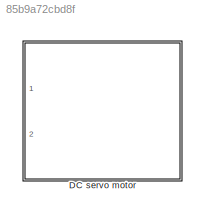
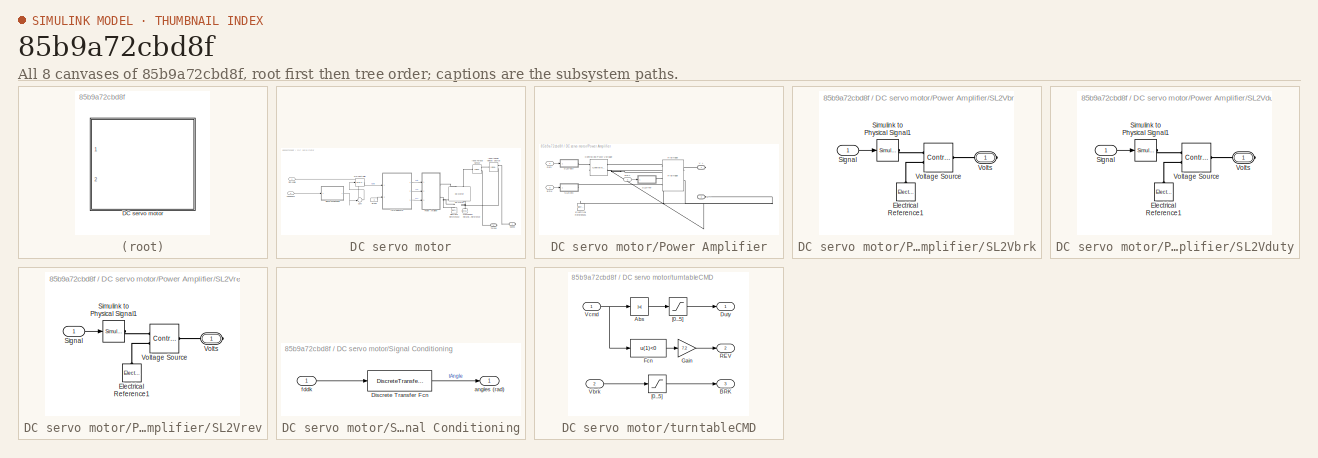
[diagram: thumbnail index - all 8 canvases of the model, root first then tree order]
MODEL slx_85b9a72cbd8f
KIND model
CONFIG AbsTol = auto
CONFIG EnableMultiTasking = off
CONFIG FixedStep = auto
CONFIG MaxStep = auto
CONFIG MinStep = auto
CONFIG RelTol = 1e-3
CONFIG SampleTimeConstraint = Unconstrained
CONFIG Solver = VariableStepAuto
CONFIG SolverName = VariableStepAuto
CONFIG StartTime = 0.0
CONFIG StopTime = 10.0
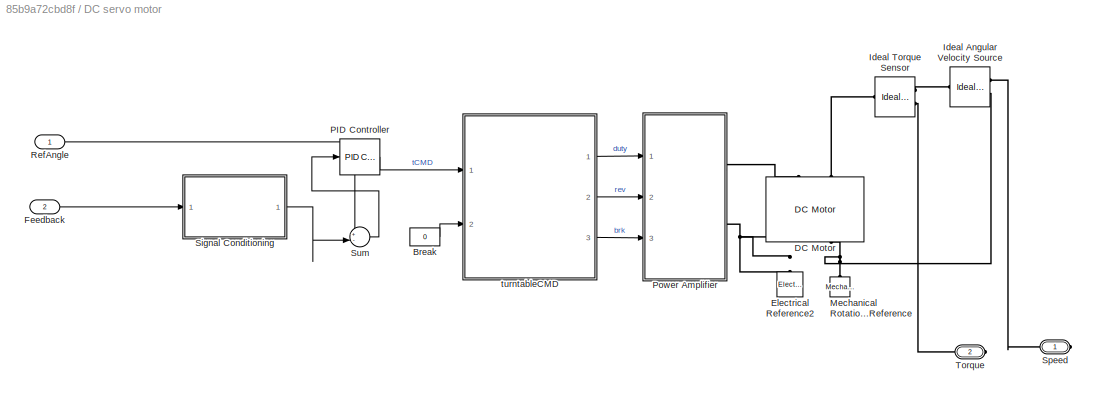
BLOCK [SubSystem] DC servo motor
  Ports = [2, 0, 0, 0, 0, 0, 2]
  RequestExecContextInheritance = off
BLOCK [Constant] DC servo motor/Break
  Value = 0
BLOCK [Reference] DC servo motor/DC Motor  REF=elec_lib/Actuators & Drivers/Rotational Actuators/DC Motor
  Ports = [0, 0, 0, 0, 0, 2, 2]
  SourceBlock = elec_lib/Actuators & Drivers/Rotational Actuators/DC Motor
  SourceProductBaseCode = SN
  SourceProductName = Simscape Electronics
  SourceType = DC Motor
BLOCK [Reference] DC servo motor/Electrical Reference2  REF=fl_lib/Electrical/Electrical Elements/Electrical Reference
  Ports = [0, 0, 0, 0, 0, 1]
  SourceBlock = fl_lib/Electrical/Electrical Elements/Electrical Reference
  SourceProductBaseCode = SS
  SourceProductName = Simscape
  SourceType = Electrical Reference
BLOCK [Inport] DC servo motor/Feedback
  IconDisplay = Port number
  Port = 2
BLOCK [Reference] DC servo motor/Ideal Angular Velocity Source  REF=fl_lib/Mechanical/Mechanical Sources/Ideal Angular
Velocity Source
  Ports = [0, 0, 0, 0, 0, 1, 2]
  SourceBlock = fl_lib/Mechanical/Mechanical Sources/Ideal Angular\nVelocity Source
  SourceProductBaseCode = SS
  SourceProductName = Simscape
  SourceType = Ideal Angular\nVelocity Source
BLOCK [Reference] DC servo motor/Ideal Torque Sensor  REF=fl_lib/Mechanical/Mechanical Sensors/Ideal Torque Sensor
  Ports = [0, 0, 0, 0, 0, 1, 2]
  SourceBlock = fl_lib/Mechanical/Mechanical Sensors/Ideal Torque Sensor
  SourceProductBaseCode = SS
  SourceProductName = Simscape
  SourceType = Ideal Torque Sensor
BLOCK [Reference] DC servo motor/Mechanical Rotational Reference  REF=fl_lib/Mechanical/Rotational Elements/Mechanical
Rotational Reference
  Ports = [0, 0, 0, 0, 0, 1]
  SourceBlock = fl_lib/Mechanical/Rotational Elements/Mechanical\nRotational Reference
  SourceProductBaseCode = SS
  SourceProductName = Simscape
  SourceType = Mechanical\nRotational Reference
BLOCK [Reference] DC servo motor/PID Controller  REF=simulink/Continuous/PID Controller
  Ports = [1, 1]
  SourceBlock = simulink/Continuous/PID Controller
  SourceProductBaseCode = SL
  SourceProductName = Simulink
  SourceType = PID 1dof
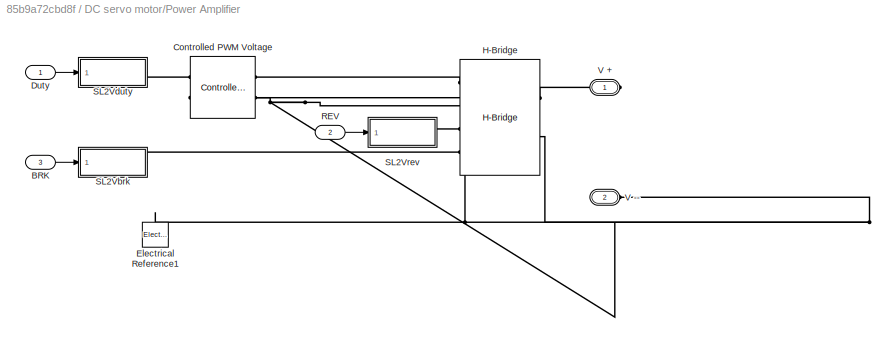
BLOCK [SubSystem] DC servo motor/Power Amplifier
  Ports = [3, 0, 0, 0, 0, 0, 2]
  RequestExecContextInheritance = off
BLOCK [Inport] DC servo motor/Power Amplifier/BRK
  IconDisplay = Port number
  Port = 3
BLOCK [Reference] DC servo motor/Power Amplifier/Controlled PWM Voltage  REF=elec_lib/Actuators & Drivers/Drivers/Controlled PWM
Voltage
  Ports = [0, 0, 0, 0, 0, 2, 2]
  SourceBlock = elec_lib/Actuators & Drivers/Drivers/Controlled PWM\nVoltage
  SourceProductBaseCode = SN
  SourceProductName = Simscape Electronics
  SourceType = Controlled PWM\nVoltage
BLOCK [Inport] DC servo motor/Power Amplifier/Duty
  IconDisplay = Port number
BLOCK [Reference] DC servo motor/Power Amplifier/Electrical Reference1  REF=fl_lib/Electrical/Electrical Elements/Electrical Reference
  Ports = [0, 0, 0, 0, 0, 1]
  SourceBlock = fl_lib/Electrical/Electrical Elements/Electrical Reference
  SourceProductBaseCode = SS
  SourceProductName = Simscape
  SourceType = Electrical Reference
BLOCK [Reference] DC servo motor/Power Amplifier/H-Bridge  REF=elec_lib/Actuators & Drivers/Drivers/H-Bridge
  Ports = [0, 0, 0, 0, 0, 4, 2]
  SourceBlock = elec_lib/Actuators & Drivers/Drivers/H-Bridge
  SourceProductBaseCode = SN
  SourceProductName = Simscape Electronics
  SourceType = H-Bridge
BLOCK [Inport] DC servo motor/Power Amplifier/REV
  IconDisplay = Port number
  Port = 2
BLOCK [SubSystem] DC servo motor/Power Amplifier/SL2Vbrk
  Ports = [1, 0, 0, 0, 0, 0, 1]
  RequestExecContextInheritance = off
BLOCK [Reference] DC servo motor/Power Amplifier/SL2Vbrk/Electrical Reference1  REF=fl_lib/Electrical/Electrical Elements/Electrical Reference
  Ports = [0, 0, 0, 0, 0, 1]
  SourceBlock = fl_lib/Electrical/Electrical Elements/Electrical Reference
  SourceProductBaseCode = SS
  SourceProductName = Simscape
  SourceType = Electrical Reference
BLOCK [Inport] DC servo motor/Power Amplifier/SL2Vbrk/Signal
  IconDisplay = Port number
BLOCK [Reference] DC servo motor/Power Amplifier/SL2Vbrk/Simulink to Physical Signal1  REF=nesl_utility/Simulink-PS
Converter
  Ports = [1, 0, 0, 0, 0, 0, 1]
  SourceBlock = nesl_utility/Simulink-PS\nConverter
  SourceProductBaseCode = SS
  SourceProductName = Simscape
  SourceType = Simulink-PS\nConverter
BLOCK [Reference] DC servo motor/Power Amplifier/SL2Vbrk/Voltage Source  REF=fl_lib/Electrical/Electrical Sources/Controlled Voltage
Source
  Ports = [0, 0, 0, 0, 0, 1, 2]
  SourceBlock = fl_lib/Electrical/Electrical Sources/Controlled Voltage\nSource
  SourceProductBaseCode = SS
  SourceProductName = Simscape
  SourceType = Controlled Voltage\nSource
BLOCK [PMIOPort] DC servo motor/Power Amplifier/SL2Vbrk/Volts
  Side = Right
  Tag = PMCPort
BLOCK [SubSystem] DC servo motor/Power Amplifier/SL2Vduty
  Ports = [1, 0, 0, 0, 0, 0, 1]
  RequestExecContextInheritance = off
BLOCK [Reference] DC servo motor/Power Amplifier/SL2Vduty/Electrical Reference1  REF=fl_lib/Electrical/Electrical Elements/Electrical Reference
  Ports = [0, 0, 0, 0, 0, 1]
  SourceBlock = fl_lib/Electrical/Electrical Elements/Electrical Reference
  SourceProductBaseCode = SS
  SourceProductName = Simscape
  SourceType = Electrical Reference
BLOCK [Inport] DC servo motor/Power Amplifier/SL2Vduty/Signal
  IconDisplay = Port number
BLOCK [Reference] DC servo motor/Power Amplifier/SL2Vduty/Simulink to Physical Signal1  REF=nesl_utility/Simulink-PS
Converter
  Ports = [1, 0, 0, 0, 0, 0, 1]
  SourceBlock = nesl_utility/Simulink-PS\nConverter
  SourceProductBaseCode = SS
  SourceProductName = Simscape
  SourceType = Simulink-PS\nConverter
BLOCK [Reference] DC servo motor/Power Amplifier/SL2Vduty/Voltage Source  REF=fl_lib/Electrical/Electrical Sources/Controlled Voltage
Source
  Ports = [0, 0, 0, 0, 0, 1, 2]
  SourceBlock = fl_lib/Electrical/Electrical Sources/Controlled Voltage\nSource
  SourceProductBaseCode = SS
  SourceProductName = Simscape
  SourceType = Controlled Voltage\nSource
BLOCK [PMIOPort] DC servo motor/Power Amplifier/SL2Vduty/Volts
  Side = Right
  Tag = PMCPort
BLOCK [SubSystem] DC servo motor/Power Amplifier/SL2Vrev
  Ports = [1, 0, 0, 0, 0, 0, 1]
  RequestExecContextInheritance = off
BLOCK [Reference] DC servo motor/Power Amplifier/SL2Vrev/Electrical Reference1  REF=fl_lib/Electrical/Electrical Elements/Electrical Reference
  Ports = [0, 0, 0, 0, 0, 1]
  SourceBlock = fl_lib/Electrical/Electrical Elements/Electrical Reference
  SourceProductBaseCode = SS
  SourceProductName = Simscape
  SourceType = Electrical Reference
BLOCK [Inport] DC servo motor/Power Amplifier/SL2Vrev/Signal
  IconDisplay = Port number
BLOCK [Reference] DC servo motor/Power Amplifier/SL2Vrev/Simulink to Physical Signal1  REF=nesl_utility/Simulink-PS
Converter
  Ports = [1, 0, 0, 0, 0, 0, 1]
  SourceBlock = nesl_utility/Simulink-PS\nConverter
  SourceProductBaseCode = SS
  SourceProductName = Simscape
  SourceType = Simulink-PS\nConverter
BLOCK [Reference] DC servo motor/Power Amplifier/SL2Vrev/Voltage Source  REF=fl_lib/Electrical/Electrical Sources/Controlled Voltage
Source
  Ports = [0, 0, 0, 0, 0, 1, 2]
  SourceBlock = fl_lib/Electrical/Electrical Sources/Controlled Voltage\nSource
  SourceProductBaseCode = SS
  SourceProductName = Simscape
  SourceType = Controlled Voltage\nSource
BLOCK [PMIOPort] DC servo motor/Power Amplifier/SL2Vrev/Volts
  Side = Right
  Tag = PMCPort
BLOCK [PMIOPort] DC servo motor/Power Amplifier/V +
  Side = Right
  Tag = PMCPort
BLOCK [PMIOPort] DC servo motor/Power Amplifier/V --
  Port = 2
  Side = Right
  Tag = PMCPort
BLOCK [Inport] DC servo motor/RefAngle
  IconDisplay = Port number
BLOCK [SubSystem] DC servo motor/Signal Conditioning
  Ports = [1, 1]
  RequestExecContextInheritance = off
BLOCK [DiscreteTransferFcn] DC servo motor/Signal Conditioning/Discrete Transfer Fcn
  Denominator = [100 1]
  InputPortMap = u0
  Numerator = 100
  Ports = [1, 1]
BLOCK [Outport] DC servo motor/Signal Conditioning/angles (rad)
  IconDisplay = Port number
BLOCK [Inport] DC servo motor/Signal Conditioning/fddk
  IconDisplay = Port number
BLOCK [PMIOPort] DC servo motor/Speed
  Side = Right
BLOCK [Sum] DC servo motor/Sum
  IconShape = round
  InputSameDT = off
  Inputs = +-
  OutDataTypeStr = Inherit: Inherit via internal rule
  Ports = [2, 1]
  SaturateOnIntegerOverflow = off
BLOCK [PMIOPort] DC servo motor/Torque
  Port = 2
  Side = Right
BLOCK [SubSystem] DC servo motor/turntableCMD
  Ports = [2, 3]
  RequestExecContextInheritance = off
BLOCK [Abs] DC servo motor/turntableCMD/Abs
  SaturateOnIntegerOverflow = off
BLOCK [Outport] DC servo motor/turntableCMD/BRK
  IconDisplay = Port number
  Port = 3
BLOCK [Outport] DC servo motor/turntableCMD/Duty
  IconDisplay = Port number
BLOCK [Fcn] DC servo motor/turntableCMD/Fcn
  Expr = u(1)<0
BLOCK [Gain] DC servo motor/turntableCMD/Gain
  Gain = 7.2
  OutDataTypeStr = Inherit: Inherit via internal rule
  ParamDataTypeStr = Inherit: Inherit via internal rule
  SaturateOnIntegerOverflow = off
BLOCK [Outport] DC servo motor/turntableCMD/REV
  IconDisplay = Port number
  Port = 2
BLOCK [Inport] DC servo motor/turntableCMD/Vbrk
  IconDisplay = Port number
  Port = 2
BLOCK [Inport] DC servo motor/turntableCMD/Vcmd
  IconDisplay = Port number
BLOCK [Saturate] DC servo motor/turntableCMD/[0...5]
  InputPortMap = u0
  LowerLimit = 0
  Ports = [1, 1]
  UpperLimit = 7.2
BLOCK [Saturate] DC servo motor/turntableCMD/[0...5] 
  InputPortMap = u0
  LowerLimit = 0
  Ports = [1, 1]
  UpperLimit = 7.2
LINE DC servo motor/Break:1 -> DC servo motor/turntableCMD:2
LINE DC servo motor/Feedback:1 -> DC servo motor/Signal Conditioning:1
LINE DC servo motor/PID Controller:1 -> DC servo motor/turntableCMD:1
LINE DC servo motor/Power Amplifier/BRK:1 -> DC servo motor/Power Amplifier/SL2Vbrk:1
LINE DC servo motor/Power Amplifier/Duty:1 -> DC servo motor/Power Amplifier/SL2Vduty:1
LINE DC servo motor/Power Amplifier/REV:1 -> DC servo motor/Power Amplifier/SL2Vrev:1
LINE DC servo motor/Power Amplifier/SL2Vbrk/Signal:1 -> DC servo motor/Power Amplifier/SL2Vbrk/Simulink to Physical Signal1:1
LINE DC servo motor/Power Amplifier/SL2Vduty/Signal:1 -> DC servo motor/Power Amplifier/SL2Vduty/Simulink to Physical Signal1:1
LINE DC servo motor/Power Amplifier/SL2Vrev/Signal:1 -> DC servo motor/Power Amplifier/SL2Vrev/Simulink to Physical Signal1:1
LINE DC servo motor/RefAngle:1 -> DC servo motor/Sum:1
LINE DC servo motor/Signal Conditioning/Discrete Transfer Fcn:1 -> DC servo motor/Signal Conditioning/angles (rad):1
LINE DC servo motor/Signal Conditioning/fddk:1 -> DC servo motor/Signal Conditioning/Discrete Transfer Fcn:1
LINE DC servo motor/Signal Conditioning:1 -> DC servo motor/Sum:2
LINE DC servo motor/Sum:1 -> DC servo motor/PID Controller:1
LINE DC servo motor/turntableCMD/Abs:1 -> DC servo motor/turntableCMD/[0...5]:1
LINE DC servo motor/turntableCMD/Fcn:1 -> DC servo motor/turntableCMD/Gain:1
LINE DC servo motor/turntableCMD/Gain:1 -> DC servo motor/turntableCMD/REV:1
LINE DC servo motor/turntableCMD/Vbrk:1 -> DC servo motor/turntableCMD/[0...5] :1
NET DC servo motor/turntableCMD/Vcmd:1 -> DC servo motor/turntableCMD/Abs:1, DC servo motor/turntableCMD/Fcn:1
LINE DC servo motor/turntableCMD/[0...5] :1 -> DC servo motor/turntableCMD/BRK:1
LINE DC servo motor/turntableCMD/[0...5]:1 -> DC servo motor/turntableCMD/Duty:1
LINE DC servo motor/turntableCMD:1 -> DC servo motor/Power Amplifier:1
LINE DC servo motor/turntableCMD:2 -> DC servo motor/Power Amplifier:2
LINE DC servo motor/turntableCMD:3 -> DC servo motor/Power Amplifier:3
PLINE DC servo motor/DC Motor:LConn1 -- DC servo motor/Power Amplifier:RConn1
PLINE DC servo motor/DC Motor:LConn2 -- DC servo motor/Ideal Torque Sensor:LConn1
PNET net1: DC servo motor/DC Motor:RConn1 -- DC servo motor/Electrical Reference2:LConn1 -- DC servo motor/Power Amplifier:RConn2
PNET net2: DC servo motor/DC Motor:RConn2 -- DC servo motor/Ideal Angular Velocity Source:RConn2 -- DC servo motor/Mechanical Rotational Reference:LConn1
PLINE DC servo motor/Ideal Angular Velocity Source:LConn1 -- DC servo motor/Ideal Torque Sensor:RConn1
PLINE DC servo motor/Ideal Angular Velocity Source:RConn1 -- DC servo motor/Speed:RConn1
PLINE DC servo motor/Ideal Torque Sensor:RConn2 -- DC servo motor/Torque:RConn1
PLINE DC servo motor/Power Amplifier/Controlled PWM Voltage:LConn1 -- DC servo motor/Power Amplifier/SL2Vduty:RConn1
PNET net3: DC servo motor/Power Amplifier/Controlled PWM Voltage:LConn2 -- DC servo motor/Power Amplifier/Controlled PWM Voltage:RConn2 -- DC servo motor/Power Amplifier/Electrical Reference1:LConn1 -- DC servo motor/Power Amplifier/H-Bridge:LConn2 -- DC servo motor/Power Amplifier/H-Bridge:RConn2 -- DC servo motor/Power Amplifier/V --:RConn1
PLINE DC servo motor/Power Amplifier/Controlled PWM Voltage:RConn1 -- DC servo motor/Power Amplifier/H-Bridge:LConn1
PLINE DC servo motor/Power Amplifier/H-Bridge:LConn3 -- DC servo motor/Power Amplifier/SL2Vrev:RConn1
PLINE DC servo motor/Power Amplifier/H-Bridge:LConn4 -- DC servo motor/Power Amplifier/SL2Vbrk:RConn1
PLINE DC servo motor/Power Amplifier/H-Bridge:RConn1 -- DC servo motor/Power Amplifier/V +:RConn1
PLINE DC servo motor/Power Amplifier/SL2Vbrk/Electrical Reference1:LConn1 -- DC servo motor/Power Amplifier/SL2Vbrk/Voltage Source:RConn2
PLINE DC servo motor/Power Amplifier/SL2Vbrk/Simulink to Physical Signal1:RConn1 -- DC servo motor/Power Amplifier/SL2Vbrk/Voltage Source:RConn1
PLINE DC servo motor/Power Amplifier/SL2Vbrk/Voltage Source:LConn1 -- DC servo motor/Power Amplifier/SL2Vbrk/Volts:RConn1
PLINE DC servo motor/Power Amplifier/SL2Vduty/Electrical Reference1:LConn1 -- DC servo motor/Power Amplifier/SL2Vduty/Voltage Source:RConn2
PLINE DC servo motor/Power Amplifier/SL2Vduty/Simulink to Physical Signal1:RConn1 -- DC servo motor/Power Amplifier/SL2Vduty/Voltage Source:RConn1
PLINE DC servo motor/Power Amplifier/SL2Vduty/Voltage Source:LConn1 -- DC servo motor/Power Amplifier/SL2Vduty/Volts:RConn1
PLINE DC servo motor/Power Amplifier/SL2Vrev/Electrical Reference1:LConn1 -- DC servo motor/Power Amplifier/SL2Vrev/Voltage Source:RConn2
PLINE DC servo motor/Power Amplifier/SL2Vrev/Simulink to Physical Signal1:RConn1 -- DC servo motor/Power Amplifier/SL2Vrev/Voltage Source:RConn1
PLINE DC servo motor/Power Amplifier/SL2Vrev/Voltage Source:LConn1 -- DC servo motor/Power Amplifier/SL2Vrev/Volts:RConn1
note: NET lines group one-source signal fan-out (src -> all destinations, sorted); 1:1 wires keep LINE; PNET lines group multi-terminal physical nets as a canonical sorted terminal list (undirected conserving connections); 2-terminal nets keep the pairwise PLINE form
